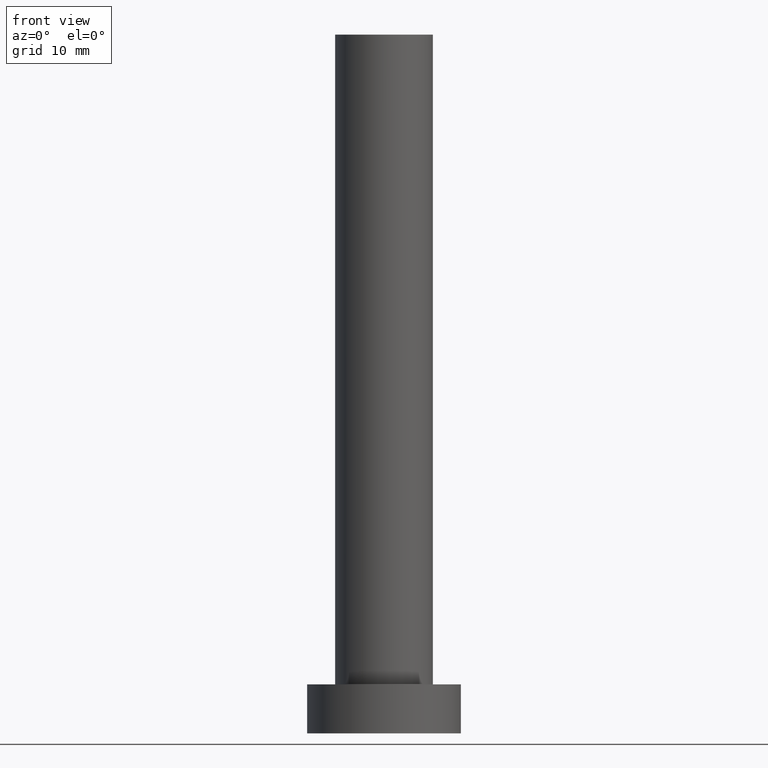
[diagram: clean part render]
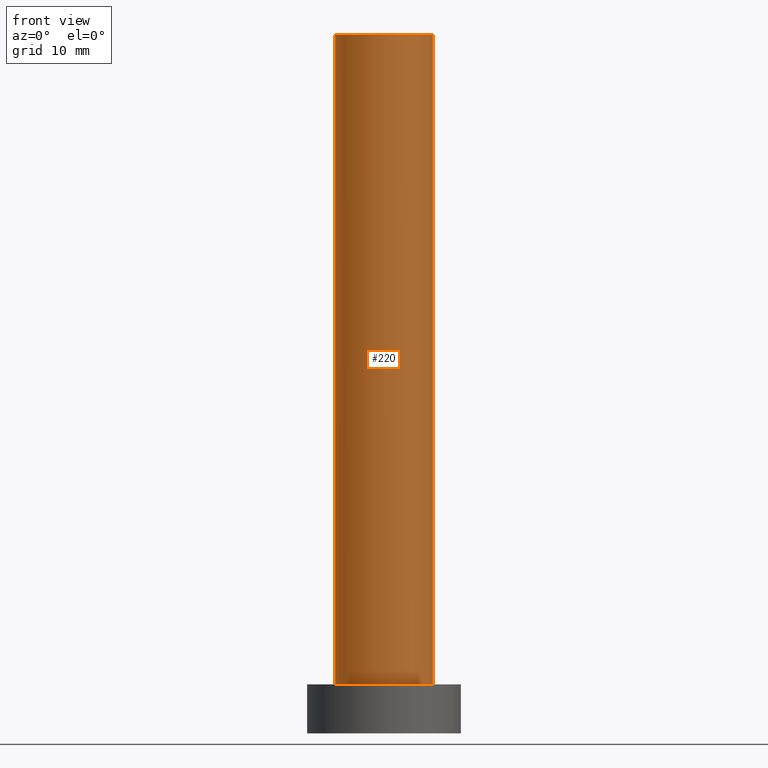
[diagram: same view with one face highlighted and labeled with its STEP entity id]
A machine part, front view. The second image highlights one B-rep face of the part: STEP entity #220.
In plain terms, the highlighted cylindrical surface (partial cylindrical patch) has radius 7 mm, axis along (-0, -0, -1).
Its self-contained STEP definition (entity closure, byte-faithful):
#6 = CARTESIAN_POINT ( 'NONE',  ( 7.000000000000000888, 8.572527594031472204E-16, 100.0000000000000000 ) ) ;
#8 = DIRECTION ( 'NONE',  ( -0.000000000000000000, -0.000000000000000000, -1.000000000000000000 ) ) ;
#12 = ORIENTED_EDGE ( 'NONE', *, *, #163, .T. ) ;
#33 = EDGE_CURVE ( 'NONE', #223, #218, #153, .T. ) ;
#35 = VECTOR ( 'NONE', #157, 1000.000000000000000 ) ;
#40 = AXIS2_PLACEMENT_3D ( 'NONE', #192, #216, #173 ) ;
#42 = CARTESIAN_POINT ( 'NONE',  ( -7.000000000000000888, 0.000000000000000000, 7.000000000000000000 ) ) ;
#56 = CARTESIAN_POINT ( 'NONE',  ( 7.000000000000000888, 8.572527594031472204E-16, 100.0000000000000000 ) ) ;
#57 = DIRECTION ( 'NONE',  ( -1.000000000000000000, 0.000000000000000000, 0.000000000000000000 ) ) ;
#59 = FACE_OUTER_BOUND ( 'NONE', #82, .T. ) ;
#68 = AXIS2_PLACEMENT_3D ( 'NONE', #176, #97, #78 ) ;
#74 = VERTEX_POINT ( 'NONE', #42 ) ;
#75 = CARTESIAN_POINT ( 'NONE',  ( 7.000000000000000888, 8.572527594031472204E-16, 7.000000000000000000 ) ) ;
#77 = CARTESIAN_POINT ( 'NONE',  ( 0.000000000000000000, 0.000000000000000000, 100.0000000000000000 ) ) ;
#78 = DIRECTION ( 'NONE',  ( 1.000000000000000000, 0.000000000000000000, 0.000000000000000000 ) ) ;
#82 = EDGE_LOOP ( 'NONE', ( #172, #92, #164, #12 ) ) ;
#92 = ORIENTED_EDGE ( 'NONE', *, *, #33, .F. ) ;
#97 = DIRECTION ( 'NONE',  ( 0.000000000000000000, 0.000000000000000000, 1.000000000000000000 ) ) ;
#107 = EDGE_CURVE ( 'NONE', #223, #74, #197, .T. ) ;
#111 = DIRECTION ( 'NONE',  ( -0.000000000000000000, -0.000000000000000000, -1.000000000000000000 ) ) ;
#130 = CYLINDRICAL_SURFACE ( 'NONE', #235, 7.000000000000000888 ) ;
#132 = CARTESIAN_POINT ( 'NONE',  ( -7.000000000000000888, 0.000000000000000000, 100.0000000000000000 ) ) ;
#135 = CIRCLE ( 'NONE', #68, 7.000000000000000888 ) ;
#153 = CIRCLE ( 'NONE', #40, 7.000000000000000888 ) ;
#157 = DIRECTION ( 'NONE',  ( -0.000000000000000000, -0.000000000000000000, -1.000000000000000000 ) ) ;
#163 = EDGE_CURVE ( 'NONE', #74, #170, #135, .T. ) ;
#164 = ORIENTED_EDGE ( 'NONE', *, *, #107, .T. ) ;
#170 = VERTEX_POINT ( 'NONE', #75 ) ;
#172 = ORIENTED_EDGE ( 'NONE', *, *, #198, .F. ) ;
#173 = DIRECTION ( 'NONE',  ( 1.000000000000000000, 0.000000000000000000, 0.000000000000000000 ) ) ;
#174 = LINE ( 'NONE', #6, #196 ) ;
#176 = CARTESIAN_POINT ( 'NONE',  ( 0.000000000000000000, 0.000000000000000000, 7.000000000000000000 ) ) ;
#192 = CARTESIAN_POINT ( 'NONE',  ( 0.000000000000000000, 0.000000000000000000, 100.0000000000000000 ) ) ;
#196 = VECTOR ( 'NONE', #8, 1000.000000000000000 ) ;
#197 = LINE ( 'NONE', #212, #35 ) ;
#198 = EDGE_CURVE ( 'NONE', #218, #170, #174, .T. ) ;
#212 = CARTESIAN_POINT ( 'NONE',  ( -7.000000000000000888, 0.000000000000000000, 100.0000000000000000 ) ) ;
#216 = DIRECTION ( 'NONE',  ( 0.000000000000000000, 0.000000000000000000, 1.000000000000000000 ) ) ;
#218 = VERTEX_POINT ( 'NONE', #56 ) ;
#220 = ADVANCED_FACE ( 'NONE', ( #59 ), #130, .T. ) ;
#223 = VERTEX_POINT ( 'NONE', #132 ) ;
#235 = AXIS2_PLACEMENT_3D ( 'NONE', #77, #111, #57 ) ;